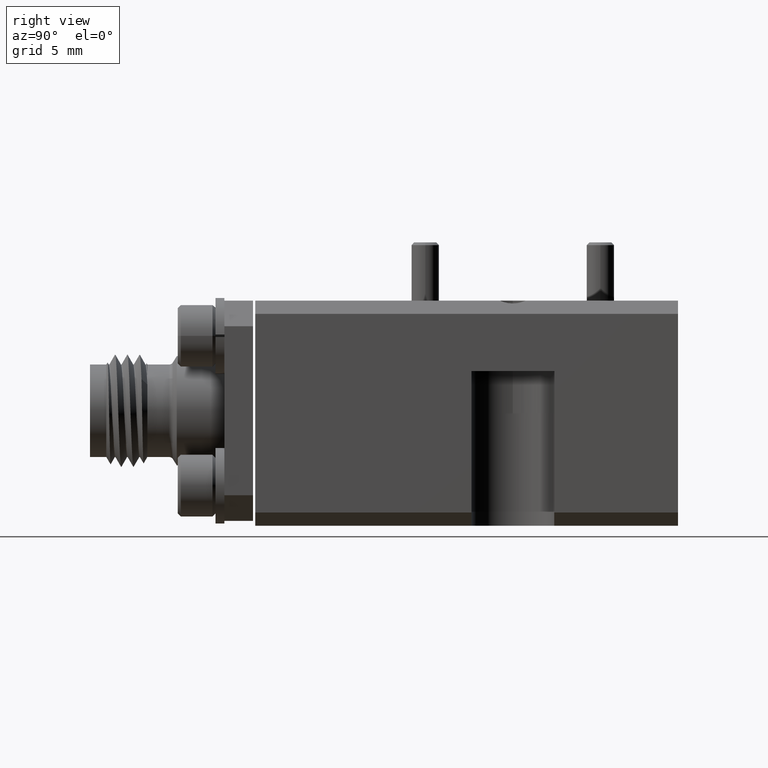
[diagram: clean part render]
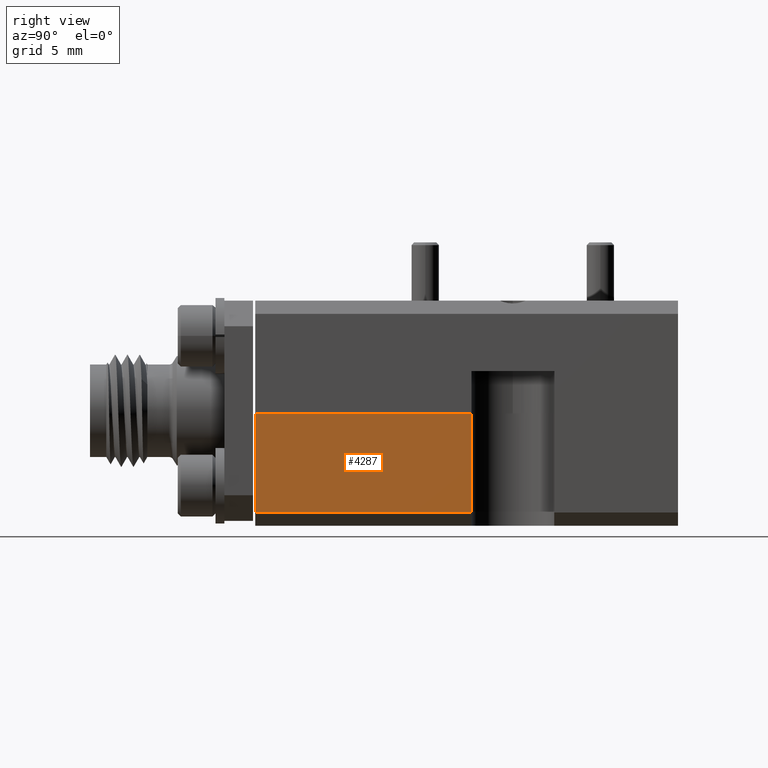
[diagram: same view with one face highlighted and labeled with its STEP entity id]
A machine part, right view. The second image highlights one B-rep face of the part: STEP entity #4287.
In plain terms, the highlighted planar face has unit normal (-1, -0, -0).
Its self-contained STEP definition (entity closure, byte-faithful):
#15 = DIRECTION ( 'NONE',  ( 1.848892746611746400E-032, 1.000000000000000000, 2.775557561562888900E-017 ) ) ;
#21 = LINE ( 'NONE', #10101, #6266 ) ;
#605 = VERTEX_POINT ( 'NONE', #5031 ) ;
#1114 = VERTEX_POINT ( 'NONE', #2573 ) ;
#1539 = ORIENTED_EDGE ( 'NONE', *, *, #5442, .F. ) ;
#1646 = EDGE_CURVE ( 'NONE', #605, #8520, #21, .T. ) ;
#1879 = ORIENTED_EDGE ( 'NONE', *, *, #1646, .T. ) ;
#2131 = LINE ( 'NONE', #4830, #5337 ) ;
#2573 = CARTESIAN_POINT ( 'NONE',  ( 0.3749999999999999400, -0.4800000000000001500, -0.2249999999999997600 ) ) ;
#2619 = DIRECTION ( 'NONE',  ( -1.000000000000000000, -1.296380161915128700E-032, -4.513000746678564400E-017 ) ) ;
#2690 = DIRECTION ( 'NONE',  ( -4.513000746678564400E-017, -2.000651077005296400E-017, 1.000000000000000000 ) ) ;
#2809 = CARTESIAN_POINT ( 'NONE',  ( 0.3749999999999999400, 0.01099999999999982800, 3.053113317719129800E-019 ) ) ;
#3470 = EDGE_LOOP ( 'NONE', ( #1539, #9670, #1879, #6279 ) ) ;
#3645 = LINE ( 'NONE', #6006, #9069 ) ;
#3994 = EDGE_CURVE ( 'NONE', #8520, #7704, #3645, .T. ) ;
#4287 = ADVANCED_FACE ( 'NONE', ( #8079 ), #4338, .F. ) ;
#4338 = PLANE ( 'NONE',  #9637 ) ;
#4583 = CARTESIAN_POINT ( 'NONE',  ( 0.3749999999999999400, -0.4800000000000001500, -1.332267629550187000E-017 ) ) ;
#4830 = CARTESIAN_POINT ( 'NONE',  ( 0.3749999999999999400, -0.4800000000000001500, -0.2550000000000000000 ) ) ;
#5031 = CARTESIAN_POINT ( 'NONE',  ( 0.3749999999999999400, 0.01099999999999983300, -0.2249999999999997600 ) ) ;
#5337 = VECTOR ( 'NONE', #5562, 39.37007874015748100 ) ;
#5442 = EDGE_CURVE ( 'NONE', #1114, #7704, #2131, .T. ) ;
#5562 = DIRECTION ( 'NONE',  ( -4.513000746678564400E-017, -2.000651077005296400E-017, 1.000000000000000000 ) ) ;
#6006 = CARTESIAN_POINT ( 'NONE',  ( 0.3749999999999999400, -0.4800000000000001500, -1.332267629550187000E-017 ) ) ;
#6266 = VECTOR ( 'NONE', #9362, 39.37007874015748100 ) ;
#6279 = ORIENTED_EDGE ( 'NONE', *, *, #3994, .T. ) ;
#7099 = EDGE_CURVE ( 'NONE', #1114, #605, #7606, .T. ) ;
#7338 = VECTOR ( 'NONE', #15, 39.37007874015748100 ) ;
#7538 = DIRECTION ( 'NONE',  ( -1.848892746611746400E-032, -1.000000000000000000, -2.775557561562888900E-017 ) ) ;
#7606 = LINE ( 'NONE', #9384, #7338 ) ;
#7704 = VERTEX_POINT ( 'NONE', #4583 ) ;
#8079 = FACE_OUTER_BOUND ( 'NONE', #3470, .T. ) ;
#8168 = CARTESIAN_POINT ( 'NONE',  ( 0.3749999999999999400, -0.4800000000000001500, -0.2550000000000000000 ) ) ;
#8520 = VERTEX_POINT ( 'NONE', #2809 ) ;
#9069 = VECTOR ( 'NONE', #7538, 39.37007874015748100 ) ;
#9362 = DIRECTION ( 'NONE',  ( -4.513000746678564400E-017, -2.000651077005296400E-017, 1.000000000000000000 ) ) ;
#9384 = CARTESIAN_POINT ( 'NONE',  ( 0.3749999999999999400, 0.01099999999999983300, -0.2249999999999997600 ) ) ;
#9637 = AXIS2_PLACEMENT_3D ( 'NONE', #8168, #2619, #2690 ) ;
#9670 = ORIENTED_EDGE ( 'NONE', *, *, #7099, .T. ) ;
#10101 = CARTESIAN_POINT ( 'NONE',  ( 0.3749999999999999400, 0.01099999999999983300, -0.2550393700787401100 ) ) ;